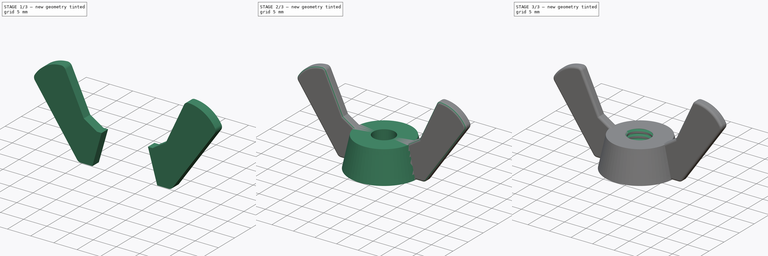
[diagram: build sequence overview — one tinted view per stage of 3, left to right]
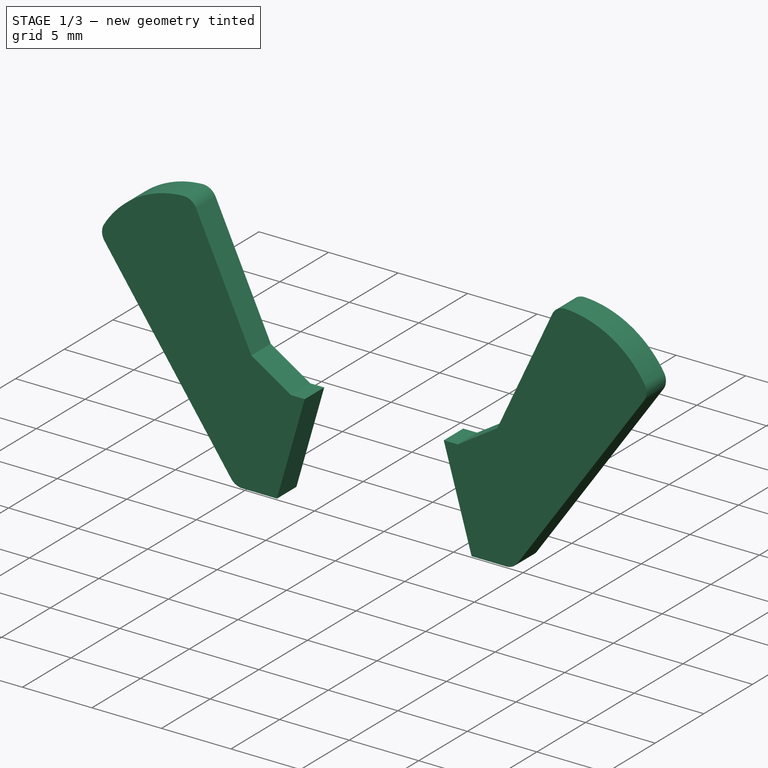
[diagram: stage 1 of 3 — iso view after this stage's code; geometry added in this stage tinted green]
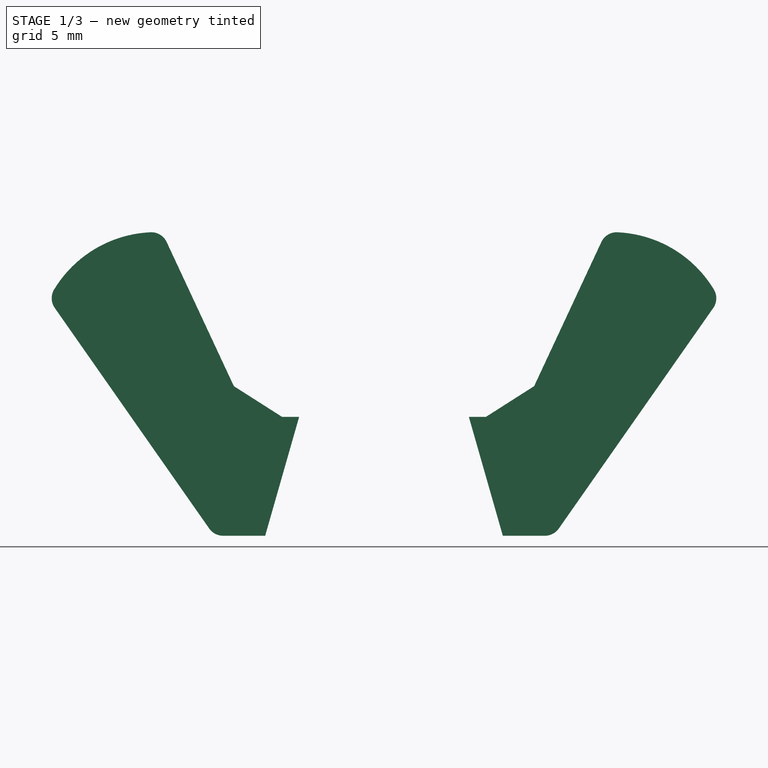
[diagram: stage 1 of 3 — front view after this stage's code; geometry added in this stage tinted green]
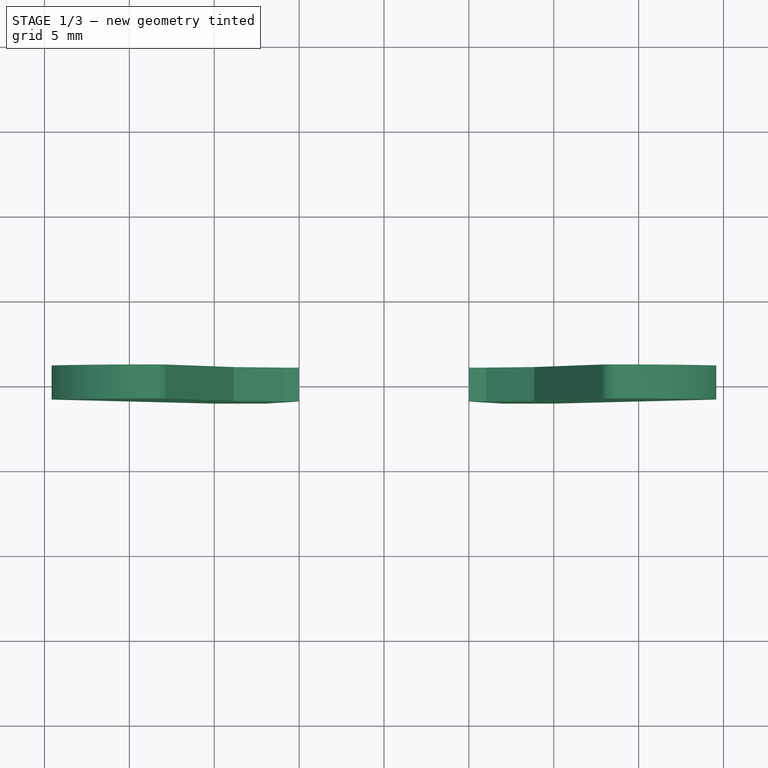
[diagram: stage 1 of 3 — top view after this stage's code; geometry added in this stage tinted green]
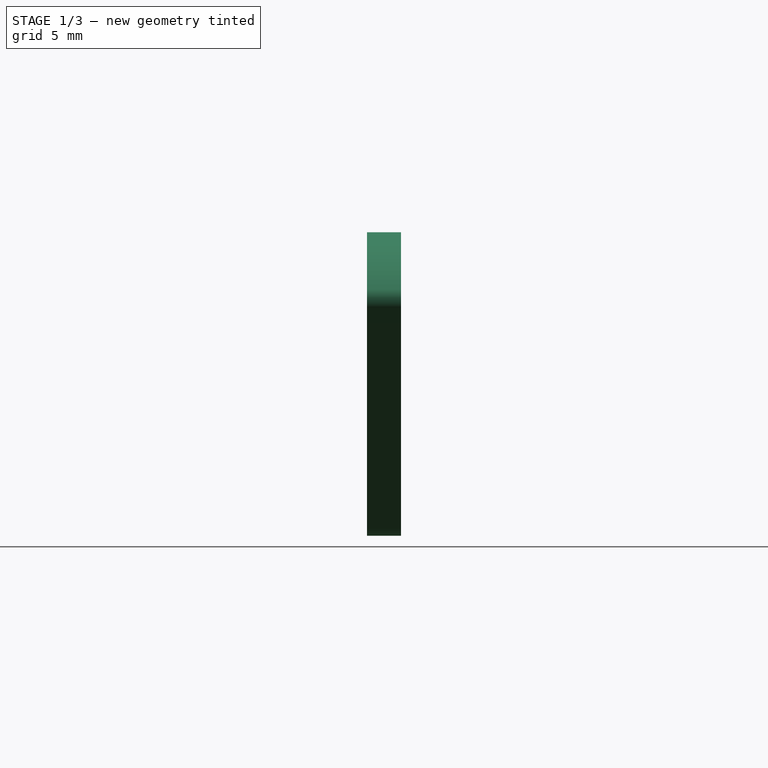
[diagram: stage 1 of 3 — right view after this stage's code; geometry added in this stage tinted green]
FCSTD DOCUMENT  (FreeCAD 0.16R6712 (Git))
Label: 05-Tuerca-palometa
License: All rights reserved
LicenseURL: http://en.wikipedia.org/wiki/All_rights_reserved
objects: Sketcher::SketchObject×3, Part::Fillet×2, Part::Helix×1, Part::Sweep×1, PartDesign::Revolution×1, Part::Cut×1, PartDesign::Pad×1, Part::Chamfer×1, Part::MultiFuse×1
note: 14 computed .brp shape members not serialized (recipe doc carries the construction recipe); baked Part::Feature solids carry a one-line shape summary decoded from their .brp

FEATURE [Sketcher::SketchObject] Sketch003
  Placement = pos=(0,0,0) rot=(1,0,0;1.5708rad)
  sketch-geometry (12):
    g0: LineSegment StartX=-19.7508 StartY=15.4256 StartZ=0 EndX=-10 EndY=1.5 EndZ=0
    g1: LineSegment StartX=-10 StartY=1.5 StartZ=0 EndX=-7 EndY=1.5 EndZ=0
    g2: LineSegment StartX=-13.0714 StartY=19.3757 StartZ=0 EndX=-8 EndY=8.5 EndZ=0
    g3: LineSegment StartX=-8 StartY=8.5 StartZ=0 EndX=-5 EndY=8.5 EndZ=0
    g4: LineSegment StartX=-7 StartY=1.5 StartZ=0 EndX=-5 EndY=8.5 EndZ=0
    g5: ArcOfCircle CenterX=-13.4432 CenterY=12.3821 CenterZ=0 NormalX=0 NormalY=0 NormalZ=1 Radius=7.00351 StartAngle=1.51769 EndAngle=2.69203
    g6: LineSegment StartX=19.7508 StartY=15.4256 StartZ=0 EndX=10 EndY=1.5 EndZ=0
    g7: LineSegment StartX=10 StartY=1.5 StartZ=0 EndX=7 EndY=1.5 EndZ=0
    g8: LineSegment StartX=13.0714 StartY=19.3757 StartZ=0 EndX=8 EndY=8.5 EndZ=0
    g9: LineSegment StartX=8 StartY=8.5 StartZ=0 EndX=5 EndY=8.5 EndZ=0
    g10: LineSegment StartX=7 StartY=1.5 StartZ=0 EndX=5 EndY=8.5 EndZ=0
    g11: ArcOfCircle CenterX=13.4432 CenterY=12.3821 CenterZ=0 NormalX=0 NormalY=0 NormalZ=1 Radius=7.00351 StartAngle=0.449562 EndAngle=1.6239
  constraints (29):
    c: DistanceY(g-1,g0) = 1.5
    c: DistanceX(g0,g-1) = 10
    c: Angle(g-1,g0) = 2.18166
    c: Coincident(g1,g0)
    c: Horizontal(g1)
    c: DistanceX(g1,g1) = 3
    c: Angle(g-1,g2) = 2.00713
    c: Coincident(g3,g2)
    c: Horizontal(g3)
    c: DistanceY(g-1,g2) = 8.5
    c: Equal(g3,g1)
    c: Coincident(g4,g1)
    c: Coincident(g4,g3)
    c: Coincident(g5,g0)
    c: Coincident(g5,g2)
    c: DistanceX(g2,g-1) = 8
    c: Distance(g2) = 12
    c: Distance(g0) = 17
    c: Coincident(g7,g6)
    c: Horizontal(g7)
    c: Coincident(g9,g8)
    c: Horizontal(g9)
    c: Equal(g9,g7)
    c: Coincident(g10,g7)
    c: Coincident(g10,g9)
    c: Coincident(g11,g6)
    c: Coincident(g11,g8)
    c: Distance(g8) = 12
    c: Distance(g6) = 17
FEATURE [PartDesign::Pad] Pad  label="Pad-palometas"
  Length = 2
  Length2 = 100
  Midplane = true
  Placement = pos=(0,0,0) rot=(1,0,0;1.5708rad)
  Sketch = -> Sketch003
  Type = 0
FEATURE [Part::Chamfer] Chamfer  label="Palometas-1"
  Base = -> Pad
  Edges = 2 edges r=2: [Edge11,Edge32]
FEATURE [Part::Fillet] Fillet
  Base = -> Chamfer
  Edges = 6 edges r=1: [Edge19,Edge20,Edge21,Edge40,Edge41,Edge42]
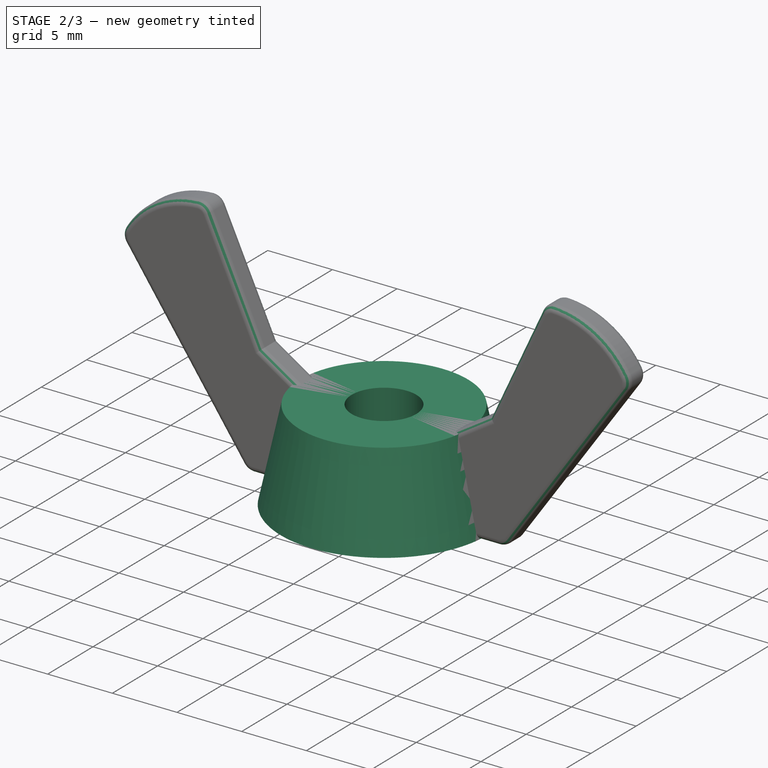
[diagram: stage 2 of 3 — iso view after this stage's code; geometry added in this stage tinted green]
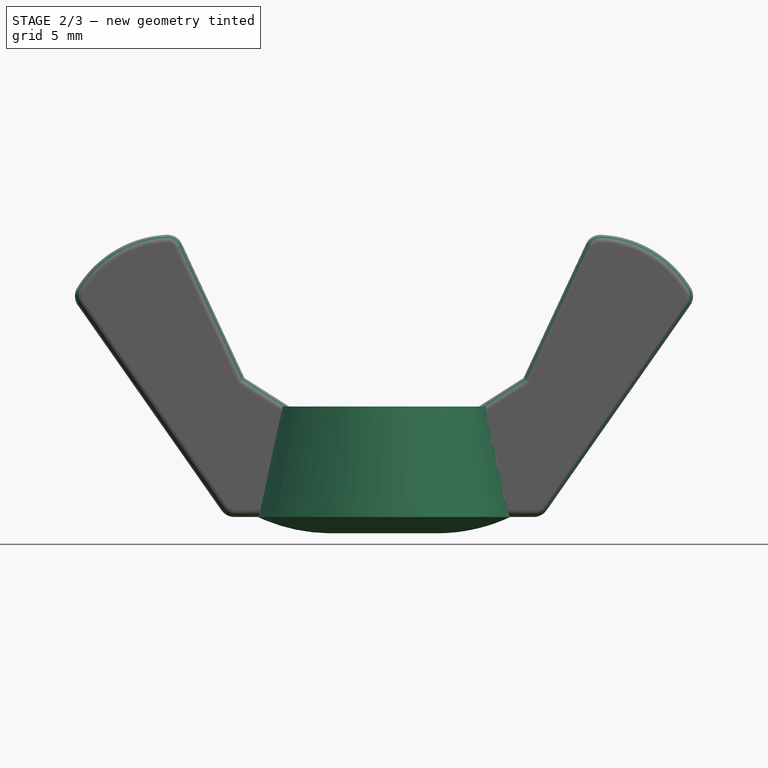
[diagram: stage 2 of 3 — front view after this stage's code; geometry added in this stage tinted green]
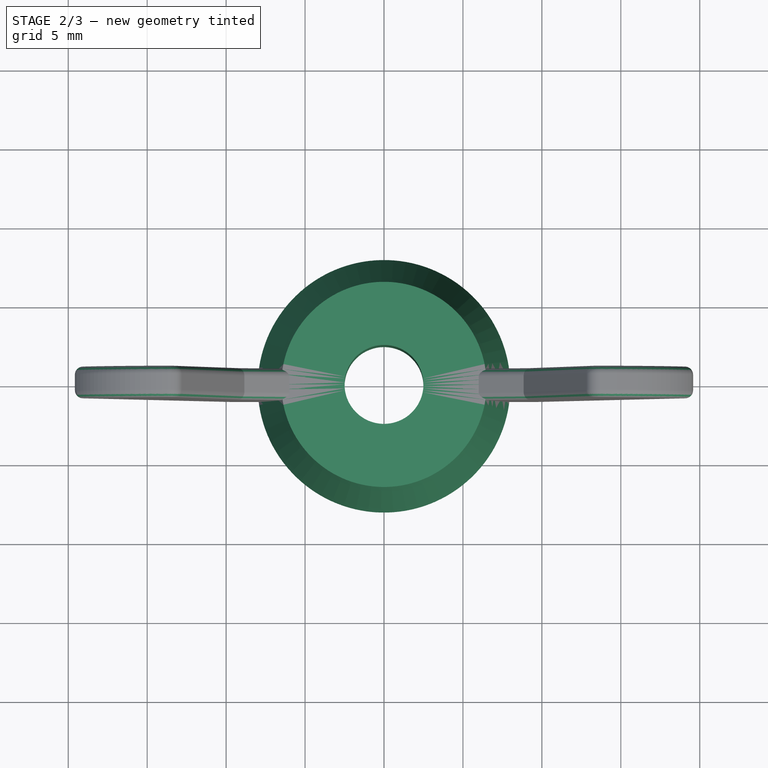
[diagram: stage 2 of 3 — top view after this stage's code; geometry added in this stage tinted green]
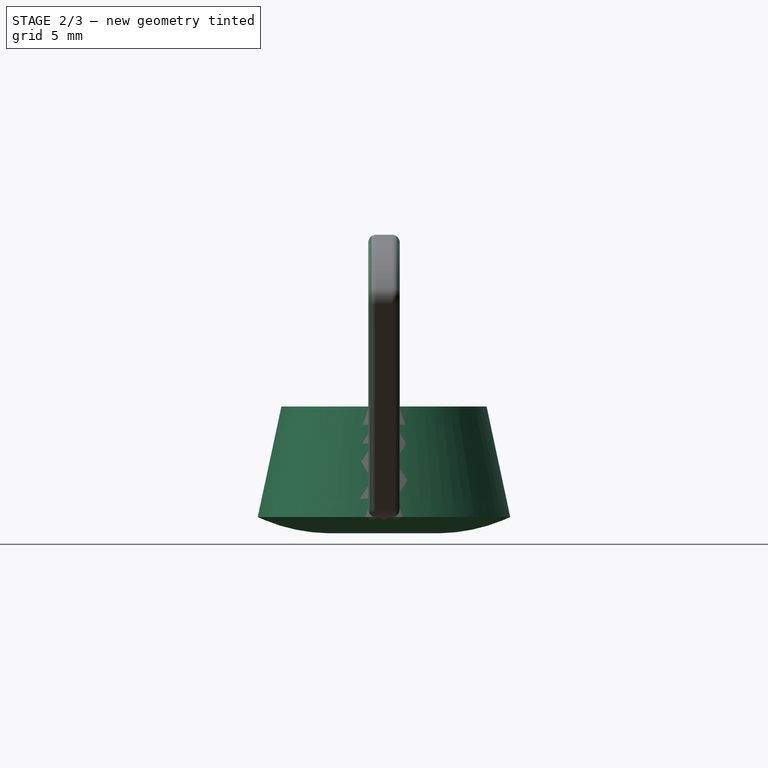
[diagram: stage 2 of 3 — right view after this stage's code; geometry added in this stage tinted green]
FEATURE [Sketcher::SketchObject] Sketch001
  Placement = pos=(0,0,0) rot=(1,0,0;1.5708rad)
  sketch-geometry (4):
    g0: LineSegment StartX=2.5 StartY=0.5 StartZ=0 EndX=2.5 EndY=8.5 EndZ=0
    g1: LineSegment StartX=2.5 StartY=8.5 StartZ=0 EndX=6.5 EndY=8.5 EndZ=0
    g2: LineSegment StartX=6.5 StartY=8.5 StartZ=0 EndX=8 EndY=1.5 EndZ=0
    g3: ArcOfCircle CenterX=3.34684 CenterY=11.4674 CenterZ=0 NormalX=0 NormalY=0 NormalZ=1 Radius=11 StartAngle=4.63533 EndAngle=5.14916
  constraints (13):
    c: Vertical(g0)
    c: Coincident(g0,g1)
    c: Horizontal(g1)
    c: Coincident(g1,g2)
    c: Coincident(g3,g0)
    c: Coincident(g3,g2)
    c: DistanceY(g-1,g0) = 0.5
    c: DistanceX(g-1,g0) = 2.5
    c: DistanceY(g0,g0) = 8
    c: DistanceX(g1,g1) = 4
    c: DistanceY(g-1,g2) = 1.5
    c: DistanceX(g-1,g2) = 8
    c: Radius(g3) = 11
FEATURE [PartDesign::Revolution] Revolution  label="Revolution-tuerca"
  Angle = 360
  Axis = (0,0,1)
  Base = (0,0,0)
  Placement = pos=(0,0,0) rot=(1,0,0;1.5708rad)
  ReferenceAxis = -> Sketch001 [V_Axis]
  Reversed = true
  Sketch = -> Sketch001
FEATURE [Part::Fillet] Fillet001  label="Aletas"
  Base = -> Fillet
  Edges = 40 edges r=0.5: [Edge1,Edge2,Edge3,Edge4,Edge5,Edge6,Edge7,Edge8,Edge9,Edge10,Edge13,Edge15,Edge17,Edge19,Edge21,Edge23,Edge25,Edge27,Edge29,Edge30,Edge31,Edge32,Edge33,Edge34,Edge35,Edge36,Edge37,Edge38,Edge39,Edge40,Edge43,Edge45,Edge47,Edge49,Edge51,Edge53,Edge55,Edge57,Edge59,Edge60]
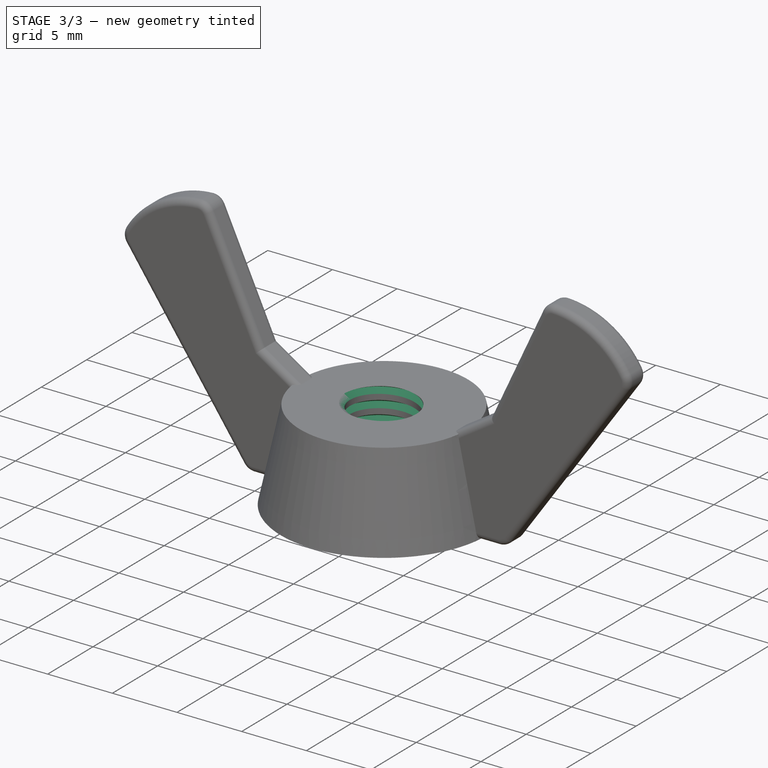
[diagram: stage 3 of 3 — iso view after this stage's code; geometry added in this stage tinted green]
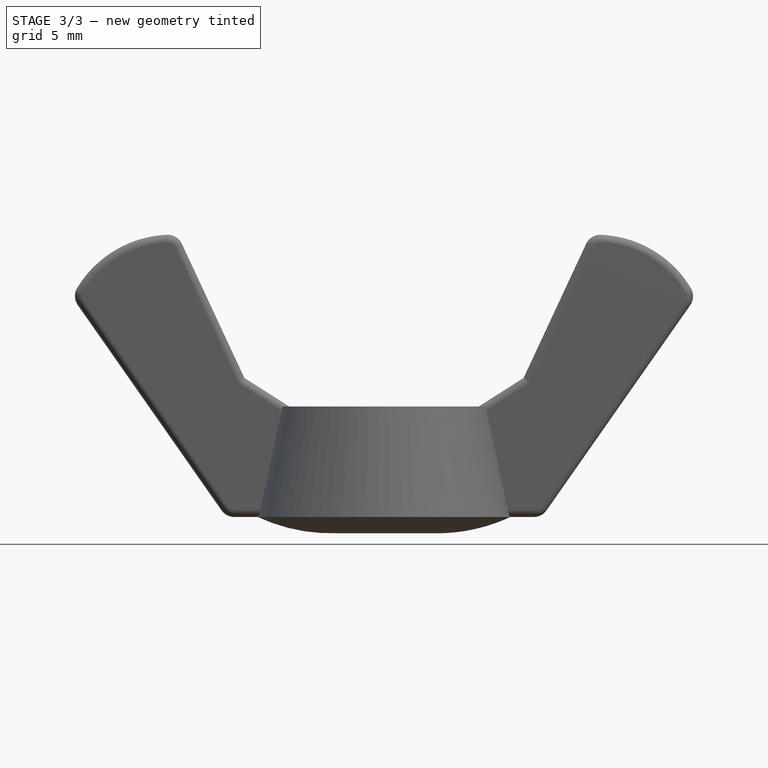
[diagram: stage 3 of 3 — front view after this stage's code; geometry added in this stage tinted green]
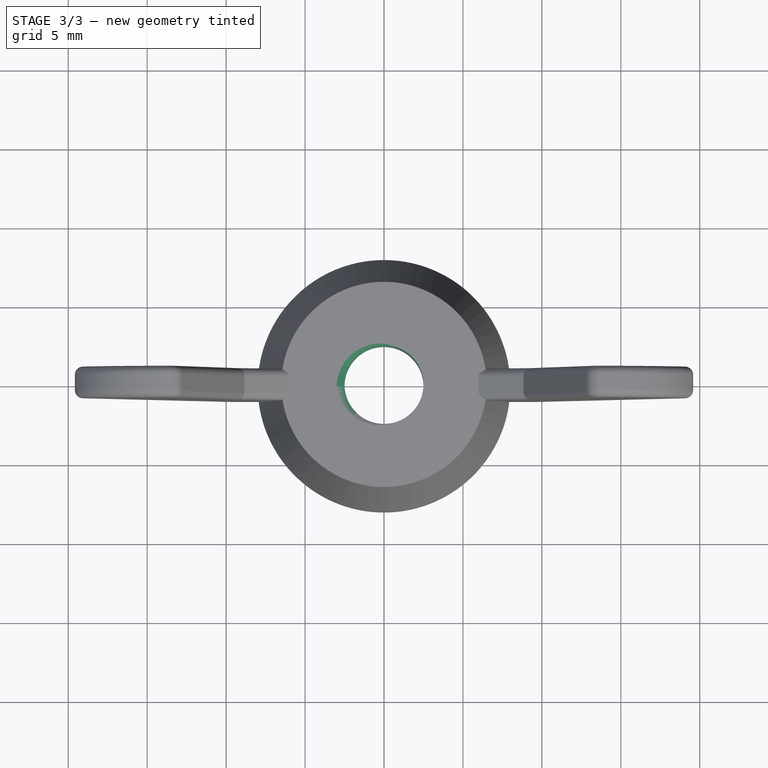
[diagram: stage 3 of 3 — top view after this stage's code; geometry added in this stage tinted green]
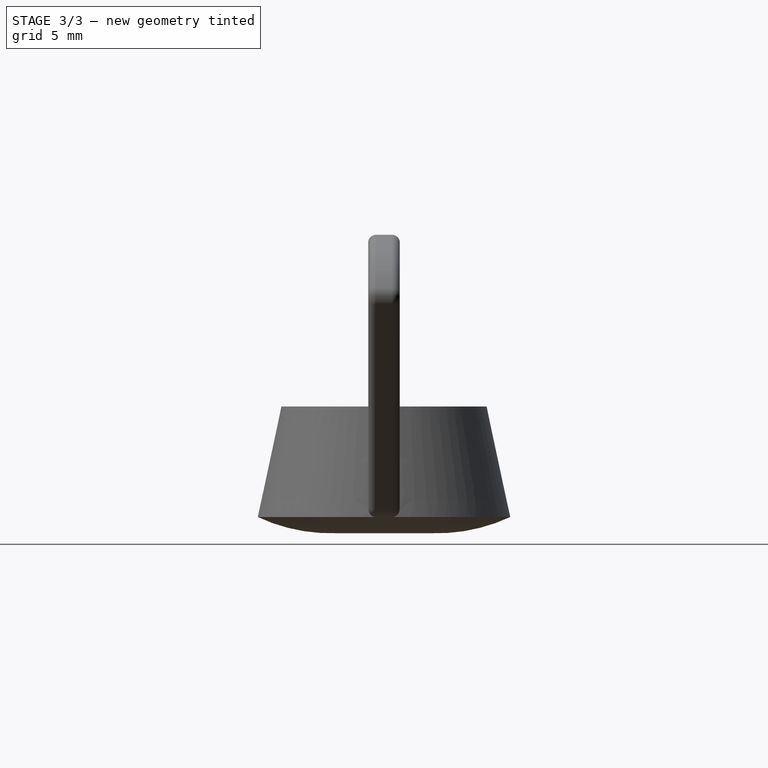
[diagram: stage 3 of 3 — right view after this stage's code; geometry added in this stage tinted green]
FEATURE [Part::Helix] Helix  label="Espiral"
  Angle = 0
  Height = 9
  LocalCoord = 0
  Pitch = 1
  Radius = 2.5
  Style = 1
FEATURE [Sketcher::SketchObject] Sketch
  Placement = pos=(0,0,0) rot=(1,0,0;1.5708rad)
  sketch-geometry (3):
    g0: LineSegment StartX=2.3 StartY=0.404145 StartZ=0 EndX=2.3 EndY=-0.404145 EndZ=0
    g1: LineSegment StartX=2.3 StartY=-0.404145 StartZ=0 EndX=3 EndY=0 EndZ=0
    g2: LineSegment StartX=3 StartY=0 StartZ=0 EndX=2.3 EndY=0.404145 EndZ=0
  constraints (9):
    c: Vertical(g0)
    c: Coincident(g0,g1)
    c: Coincident(g1,g2)
    c: Coincident(g2,g0)
    c: PointOnObject(g1,g-1)
    c: Symmetric(g0,g0,g-1)
    c: Angle(g2,g1) = 1.0472
    c: DistanceX(g-1,g0) = 2.3
    c: DistanceX(g-1,g1) = 3
FEATURE [Part::Sweep] Sweep  label="Sweep-rosca"
  Frenet = true
  Sections = -> [Sketch]
  Solid = true
  Spine = -> Helix
  Transition = 1
FEATURE [Part::Cut] Cut  label="Tuerca"
  Base = -> Revolution
  Tool = -> Sweep
FEATURE [Part::MultiFuse] Fusion  label="Tuerca-palometa"
  Shapes = -> [Fillet001,Cut]
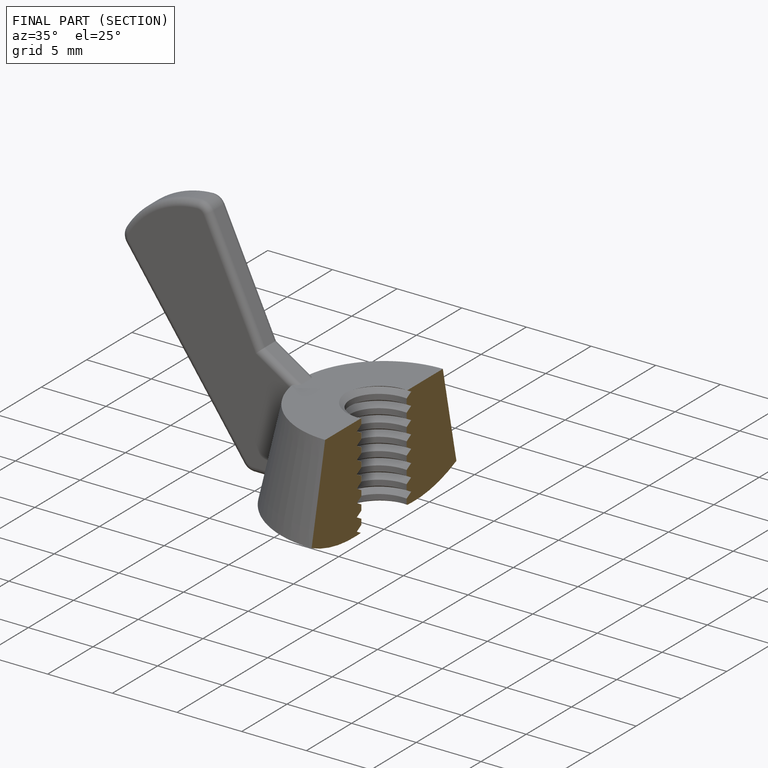
[diagram: finished part — half-section view (interior)]
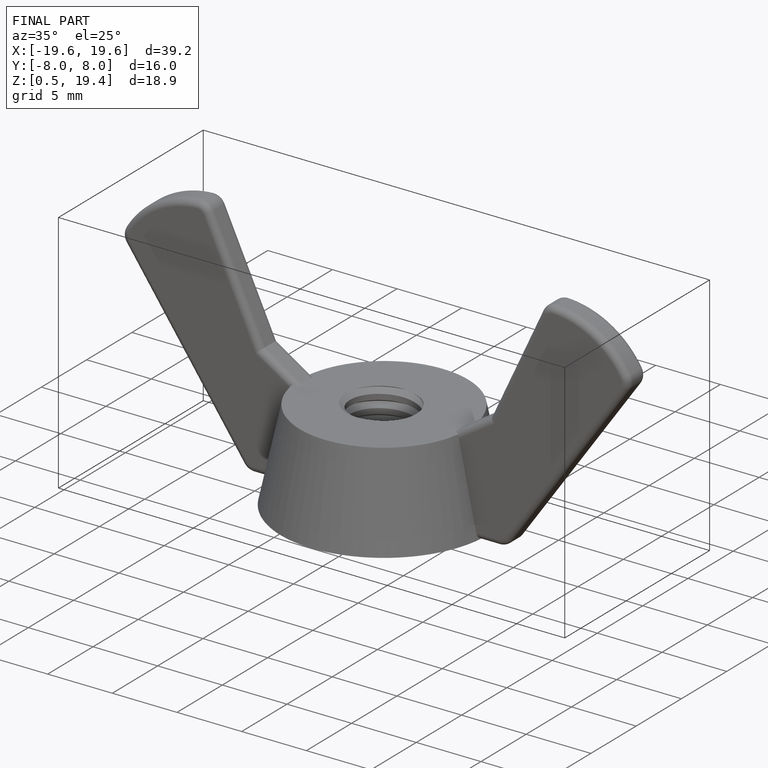
[diagram: finished part — iso view with bounding-box wireframe]
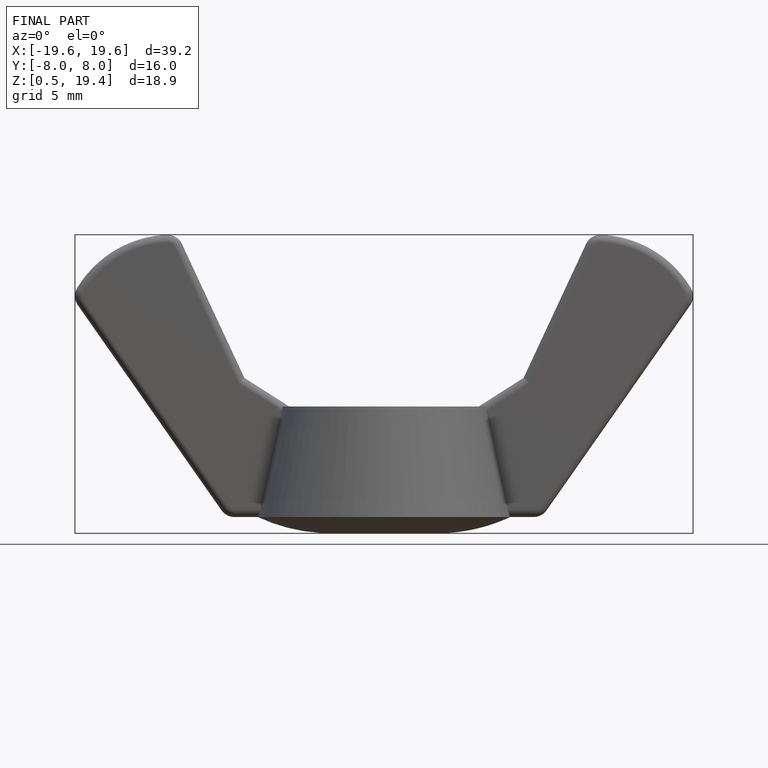
[diagram: finished part — front view with bounding-box wireframe]
